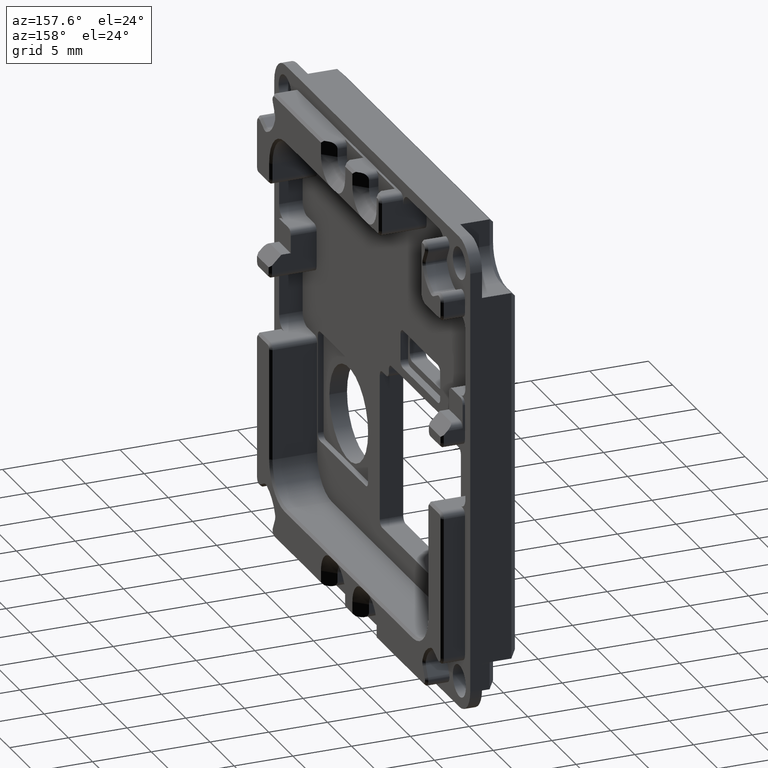
[diagram: clean part render]
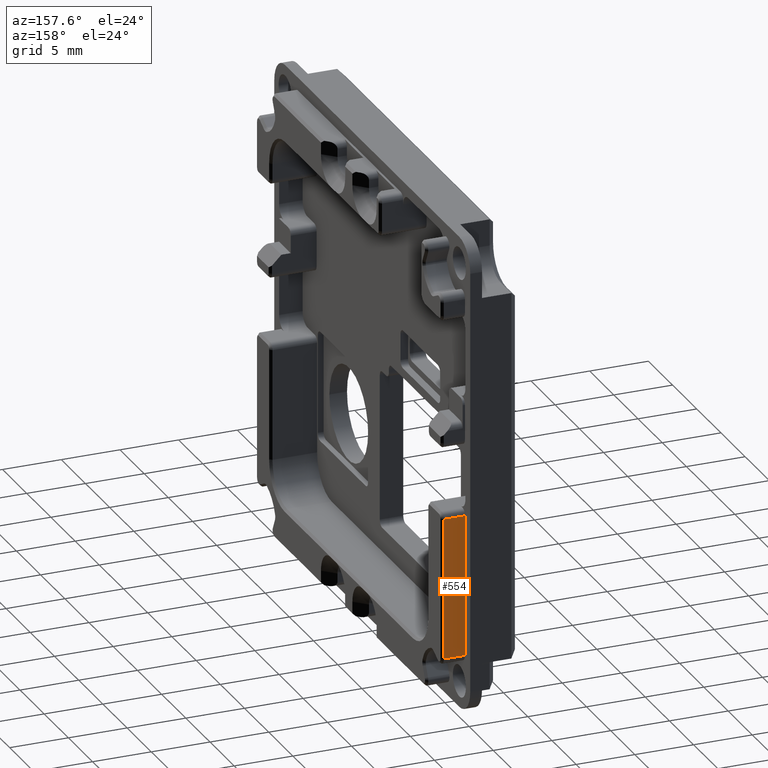
[diagram: same view with one face highlighted and labeled with its STEP entity id]
A machine part, auxiliary view. The second image highlights one B-rep face of the part: STEP entity #554.
In plain terms, the highlighted planar face has unit normal (0, 1, 0).
Its self-contained STEP definition (entity closure, byte-faithful):
#554=ADVANCED_FACE('',(#932),#3632,.T.);
#932=FACE_OUTER_BOUND('',#1339,.F.);
#1339=EDGE_LOOP('',(#2095,#2096,#2097,#2098));
#2095=ORIENTED_EDGE('',*,*,#6409,.F.);
#2096=ORIENTED_EDGE('',*,*,#6339,.T.);
#2097=ORIENTED_EDGE('',*,*,#6369,.F.);
#2098=ORIENTED_EDGE('',*,*,#5932,.F.);
#3632=PLANE('',#9211);
#5932=EDGE_CURVE('',#8808,#8809,#6896,.T.);
#6339=EDGE_CURVE('',#8467,#8466,#7156,.T.);
#6369=EDGE_CURVE('',#8809,#8466,#7176,.T.);
#6409=EDGE_CURVE('',#8467,#8808,#7216,.T.);
#6896=LINE('',#12200,#7575);
#7156=LINE('',#12662,#7835);
#7176=LINE('',#12692,#7855);
#7216=LINE('',#12732,#7895);
#7575=VECTOR('',#9543,12.0290458515587);
#7835=VECTOR('',#10087,12.0290458515589);
#7855=VECTOR('',#10127,1.8);
#7895=VECTOR('',#10167,1.8);
#8466=VERTEX_POINT('',#11756);
#8467=VERTEX_POINT('',#11757);
#8808=VERTEX_POINT('',#12098);
#8809=VERTEX_POINT('',#12099);
#9211=AXIS2_PLACEMENT_3D('',#13271,#10897,#10898);
#9543=DIRECTION('',(0.,0.,1.));
#10087=DIRECTION('',(0.,0.,1.));
#10127=DIRECTION('',(1.,0.,0.));
#10167=DIRECTION('',(-1.,0.,0.));
#10897=DIRECTION('',(0.,1.,0.));
#10898=DIRECTION('',(0.,0.,1.));
#11756=CARTESIAN_POINT('',(1.80000000000001,19.150000102726,-3.30537417027399));
#11757=CARTESIAN_POINT('',(1.80000000000001,19.1500001027223,-15.3344200218319));
#12098=CARTESIAN_POINT('',(0.,19.1500001027223,-15.3344200218318));
#12099=CARTESIAN_POINT('',(0.,19.150000102726,-3.30537417027305));
#12200=CARTESIAN_POINT('',(0.,19.1500001027223,-15.3344200218317));
#12662=CARTESIAN_POINT('',(1.80000000000001,19.1500001027223,-15.334420021832));
#12692=CARTESIAN_POINT('',(0.,19.150000102726,-3.30537417027304));
#12732=CARTESIAN_POINT('',(1.8,19.1500001027223,-15.3344200218317));
#13271=CARTESIAN_POINT('',(-0.306879499111044,19.1500001027222,-15.6412995209428));